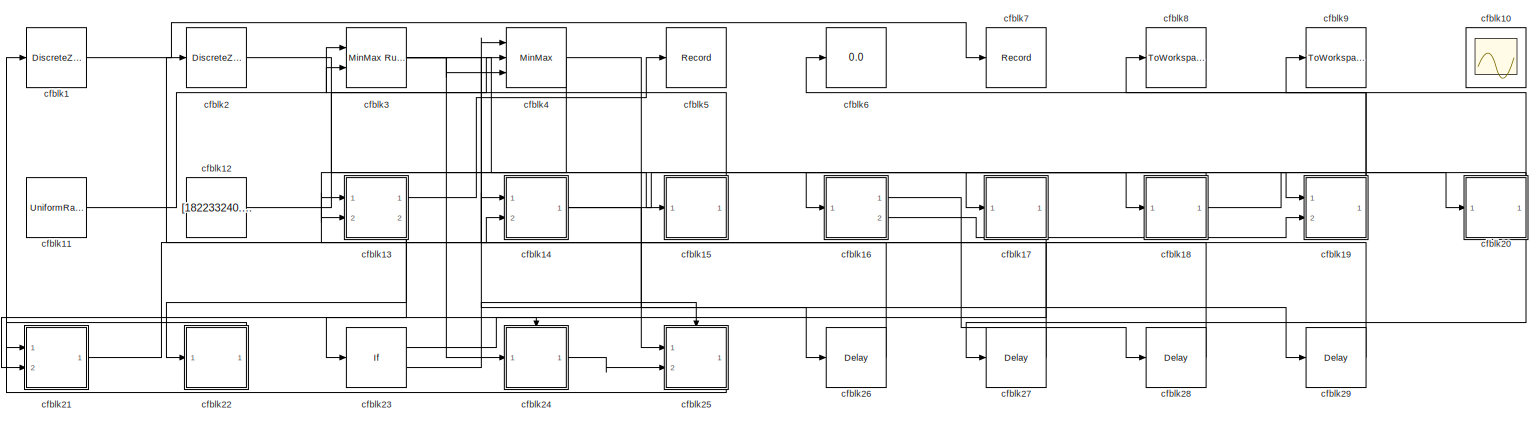
[diagram: root canvas - part 1/1, most of the canvas]
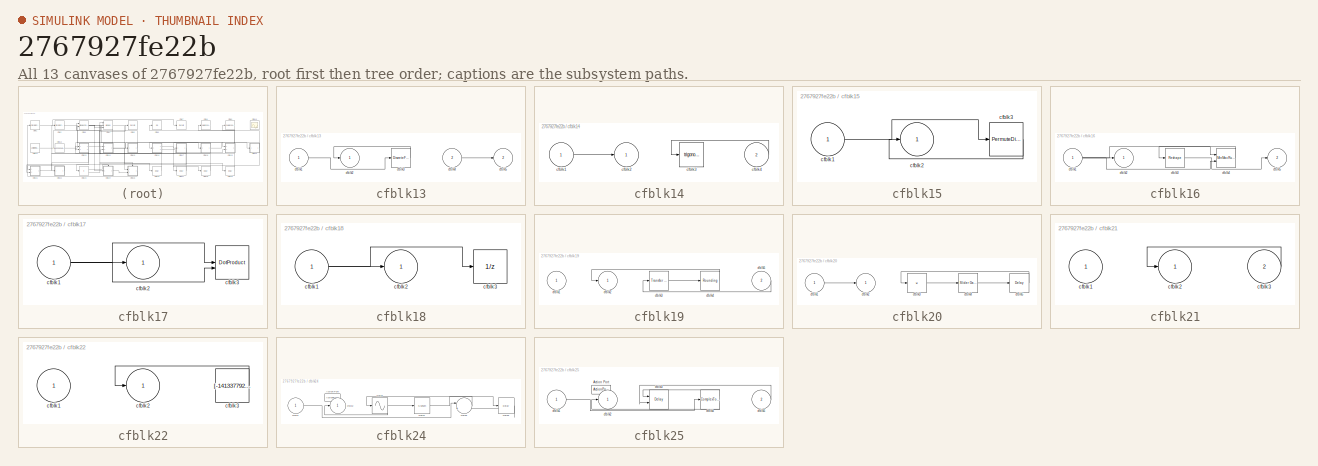
[diagram: thumbnail index - all 13 canvases of the model, root first then tree order]
MODEL slx_2767927fe22b
KIND model
CONFIG AbsTol = auto
CONFIG EnableMultiTasking = off
CONFIG FixedStep = auto
CONFIG MaxStep = auto
CONFIG MinStep = auto
CONFIG RelTol = 1e-3
CONFIG SampleTimeConstraint = Unconstrained
CONFIG SolverName = VariableStepAuto
CONFIG StartTime = 0.0
CONFIG StopTime = 10.0
BLOCK [DiscreteZeroPole] cfblk1
  Gain = 1
  Poles = [0 0.5]
BLOCK [Scope] cfblk10
  Floating = on
  NumInputPorts = 1
  Ports = []
BLOCK [UniformRandomNumber] cfblk11
  Maximum = [659722112.246496]
  Minimum = [-6625192953.180672]
  SampleTime = 0.1
  Seed = [92829086.000000]
BLOCK [Constant] cfblk12
  SampleTime = 1
  Value = [182233240.857041]
BLOCK [SubSystem] cfblk13
  Ports = [2, 2]
  RequestExecContextInheritance = off
BLOCK [Inport] cfblk13/cfblk1
BLOCK [Outport] cfblk13/cfblk2
BLOCK [DiscreteFilter] cfblk13/cfblk3
  InputPortMap = u0
  Ports = [1, 1]
  SampleTime = 1
BLOCK [Inport] cfblk13/cfblk4
  Port = 2
BLOCK [Outport] cfblk13/cfblk5
  Port = 2
BLOCK [SubSystem] cfblk14
  Ports = [2, 1]
  RequestExecContextInheritance = off
BLOCK [Inport] cfblk14/cfblk1
BLOCK [Outport] cfblk14/cfblk2
BLOCK [Trigonometry] cfblk14/cfblk3
  Ports = [1, 1]
BLOCK [Inport] cfblk14/cfblk4
  Port = 2
BLOCK [SubSystem] cfblk15
  Ports = [1, 1]
  RequestExecContextInheritance = off
BLOCK [Inport] cfblk15/cfblk1
BLOCK [Outport] cfblk15/cfblk2
BLOCK [PermuteDimensions] cfblk15/cfblk3
BLOCK [SubSystem] cfblk16
  Ports = [1, 2]
  RequestExecContextInheritance = off
BLOCK [Inport] cfblk16/cfblk1
BLOCK [Outport] cfblk16/cfblk2
BLOCK [Reshape] cfblk16/cfblk3
  Ports = [1, 1]
BLOCK [Reference] cfblk16/cfblk4  REF=simulink/Math
Operations/MinMax
Running
Resettable
  Ports = [2, 1]
  SourceBlock = simulink/Math\nOperations/MinMax\nRunning\nResettable
  SourceProductBaseCode = SL
  SourceType = MinMax Running Resettable
BLOCK [Outport] cfblk16/cfblk5
  Port = 2
BLOCK [SubSystem] cfblk17
  Ports = [1, 1]
  RequestExecContextInheritance = off
BLOCK [Inport] cfblk17/cfblk1
BLOCK [Outport] cfblk17/cfblk2
BLOCK [DotProduct] cfblk17/cfblk3
  OutDataTypeStr = Inherit: Inherit via internal rule
BLOCK [SubSystem] cfblk18
  Ports = [1, 1]
  RequestExecContextInheritance = off
BLOCK [Inport] cfblk18/cfblk1
BLOCK [Outport] cfblk18/cfblk2
BLOCK [UnitDelay] cfblk18/cfblk3
  HasFrameUpgradeWarning = on
BLOCK [SubSystem] cfblk19
  Ports = [2, 1]
  RequestExecContextInheritance = off
BLOCK [Inport] cfblk19/cfblk1
BLOCK [Outport] cfblk19/cfblk2
BLOCK [Reference] cfblk19/cfblk3  REF=simulink/Discrete/Transfer Fcn
Lead or Lag
  Ports = [1, 1]
  SourceBlock = simulink/Discrete/Transfer Fcn\nLead or Lag
  SourceProductBaseCode = SL
  SourceType = Lead or Lag Compensator
BLOCK [Rounding] cfblk19/cfblk4
BLOCK [Inport] cfblk19/cfblk5
  Port = 2
BLOCK [DiscreteZeroPole] cfblk2
  Gain = 1
  Poles = [0 0.5]
BLOCK [SubSystem] cfblk20
  Ports = [1, 1]
  RequestExecContextInheritance = off
BLOCK [Inport] cfblk20/cfblk1
BLOCK [Outport] cfblk20/cfblk2
BLOCK [Product] cfblk20/cfblk3
  Inputs = *
  Ports = [1, 1]
BLOCK [Reference] cfblk20/cfblk4  REF=simulink/Math
Operations/Slider
Gain
  Ports = [1, 1]
  SourceBlock = simulink/Math\nOperations/Slider\nGain
  SourceProductBaseCode = SL
  SourceType = Slider Gain
BLOCK [Delay] cfblk20/cfblk5
  InputPortMap = u0
  Ports = [1, 1]
  SampleTime = 1
BLOCK [SubSystem] cfblk21
  Ports = [2, 1]
  RequestExecContextInheritance = off
BLOCK [Inport] cfblk21/cfblk1
BLOCK [Outport] cfblk21/cfblk2
BLOCK [Inport] cfblk21/cfblk3
  Port = 2
BLOCK [SubSystem] cfblk22
  Ports = [1, 1]
  RequestExecContextInheritance = off
BLOCK [Inport] cfblk22/cfblk1
BLOCK [Outport] cfblk22/cfblk2
BLOCK [Constant] cfblk22/cfblk3
  SampleTime = 1
  Value = [-141337792.155833]
BLOCK [If] cfblk23
  IfExpression = u1 >= 0
  Ports = [1, 2]
  SampleTime = 1
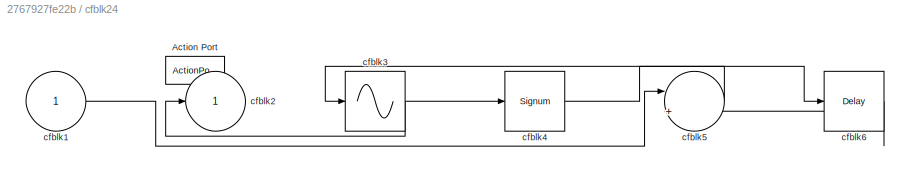
BLOCK [SubSystem] cfblk24
  Ports = [1, 1, 0, 0, 0, 0, 0, 1]
  RequestExecContextInheritance = off
  TreatAsAtomicUnit = on
BLOCK [ActionPort] cfblk24/Action Port
  ActionPortLabel = if(u1 >= 0)
BLOCK [Inport] cfblk24/cfblk1
BLOCK [Outport] cfblk24/cfblk2
BLOCK [Sin] cfblk24/cfblk3
  Ports = [1, 1]
  SampleTime = 0
  TimeSource = Use external signal
BLOCK [Signum] cfblk24/cfblk4
BLOCK [Sum] cfblk24/cfblk5
  Inputs = |++
  Ports = [2, 1]
BLOCK [Delay] cfblk24/cfblk6
  InputPortMap = u0
  Ports = [1, 1]
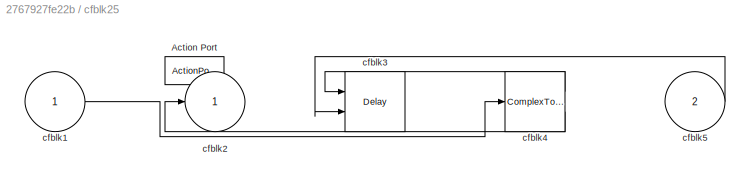
BLOCK [SubSystem] cfblk25
  Ports = [2, 1, 0, 0, 0, 0, 0, 1]
  RequestExecContextInheritance = off
  TreatAsAtomicUnit = on
BLOCK [ActionPort] cfblk25/Action Port
  ActionPortLabel = else
BLOCK [Inport] cfblk25/cfblk1
BLOCK [Outport] cfblk25/cfblk2
BLOCK [Delay] cfblk25/cfblk3
  InputPortMap = u0,e6
  Ports = [2, 1]
  ShowEnablePort = on
BLOCK [ComplexToRealImag] cfblk25/cfblk4
  Ports = [1, 2]
BLOCK [Inport] cfblk25/cfblk5
  Port = 2
BLOCK [Delay] cfblk26
  InputPortMap = u0
  Ports = [1, 1]
  SampleTime = 1
BLOCK [Delay] cfblk27
  InputPortMap = u0
  Ports = [1, 1]
  SampleTime = 1
BLOCK [Delay] cfblk28
  InputPortMap = u0
  Ports = [1, 1]
  SampleTime = 1
BLOCK [Delay] cfblk29
  InputPortMap = u0
  Ports = [1, 1]
  SampleTime = 1
BLOCK [Reference] cfblk3  REF=simulink/Math
Operations/MinMax
Running
Resettable
  Ports = [2, 1]
  SourceBlock = simulink/Math\nOperations/MinMax\nRunning\nResettable
  SourceProductBaseCode = SL
  SourceType = MinMax Running Resettable
BLOCK [MinMax] cfblk4
  Function = max
  Inputs = 3
  Ports = [3, 1]
BLOCK [Record] cfblk5
  FileSettingsInternal = {"entries":[{"content":{"excelSettings":{"content":{},"type":"Streamout.ExcelSettings"}},"type":"Streamout.FileSettingStorage","uuid":"0f116b82-28e0-41c1-9d28-ccf6914d8969"}],"packageUris":["http://schema.mathworks.com/mf0/streamout_blocks/R2020a"],"version":"1.0"}
  Ports = [1]
  SignalsInternal = {"entries":[{"content":{"signals":[{"content":{"blockPath":["sampleModel133/cfblk5"],"channel":[],"dimensions":[1],"domain":"sampleModel133/cfblk5","lineColor":"#ff6929","plots":[1],"port":1,"sid":[""],"signalID":4650,"signalName":"cfblk13:1"},"type":"RecordBlkView.Signal","uuid":"5c9d4d2d-3be4-4ef9-9a8e-3bb03e591d5f"}]},"type":"RecordBlkView.InputSignals","uuid":"da5b8e4e-e8d3-4078-99a8-ef419a7cb...<+97ch>
  VisualizationBindings = {"sparklinesplugin":{"info":[{"bindingParametersList":[],"subplotID":1}]}}
BLOCK [Display] cfblk6
  Decimation = 1
  Ports = [1]
BLOCK [Record] cfblk7
  FileSettingsInternal = {"entries":[{"content":{"excelSettings":{"content":{},"type":"Streamout.ExcelSettings"}},"type":"Streamout.FileSettingStorage","uuid":"4582ff4c-a753-4cc0-a705-87be088536e4"}],"packageUris":["http://schema.mathworks.com/mf0/streamout_blocks/R2020a"],"version":"1.0"}
  Ports = [1]
  SignalsInternal = {"entries":[{"content":{"signals":[{"content":{"blockPath":["sampleModel133/cfblk7"],"channel":[],"dimensions":[1],"domain":"sampleModel133/cfblk7","lineColor":"#b746ff","plots":[1],"port":1,"sid":[""],"signalID":4654,"signalName":"cfblk1"},"type":"RecordBlkView.Signal","uuid":"e968a7e7-b7c7-42d6-b284-279b8472955c"}]},"type":"RecordBlkView.InputSignals","uuid":"fe7274b2-3fec-4592-8935-8bf87c9eb367...<+94ch>
  VisualizationBindings = {"sparklinesplugin":{"info":[{"bindingParametersList":[],"subplotID":1}]}}
BLOCK [ToWorkspace] cfblk8
  FixptAsFi = on
  MaxDataPoints = inf
  Ports = [1]
  SampleTime = -1
  SaveFormat = Timeseries
  VariableName = kcyjflc
BLOCK [ToWorkspace] cfblk9
  FixptAsFi = on
  MaxDataPoints = inf
  Ports = [1]
  SampleTime = -1
  SaveFormat = Timeseries
  VariableName = iwfbkai
LINE cfblk11:1 -> cfblk3:1
LINE cfblk12:1 -> cfblk4:2
LINE cfblk13/cfblk1:1 -> cfblk13/cfblk3:1
LINE cfblk13/cfblk3:1 -> cfblk13/cfblk2:1
LINE cfblk13/cfblk4:1 -> cfblk13/cfblk5:1
LINE cfblk13:1 -> cfblk5:1
NET cfblk13:2 -> cfblk21:2, cfblk22:1
LINE cfblk14/cfblk1:1 -> cfblk14/cfblk2:1
LINE cfblk14/cfblk4:1 -> cfblk14/cfblk3:1
NET cfblk14:1 -> cfblk18:1, cfblk29:1
LINE cfblk15/cfblk1:1 -> cfblk15/cfblk3:1
LINE cfblk15/cfblk3:1 -> cfblk15/cfblk2:1
LINE cfblk15:1 -> cfblk3:2
NET cfblk16/cfblk1:1 -> cfblk16/cfblk2:1, cfblk16/cfblk4:1, cfblk16/cfblk4:2
LINE cfblk16/cfblk3:1 -> cfblk16/cfblk5:1
LINE cfblk16/cfblk4:1 -> cfblk16/cfblk3:1
LINE cfblk16:1 -> cfblk28:1
LINE cfblk16:2 -> cfblk19:2
NET cfblk17/cfblk1:1 -> cfblk17/cfblk2:1, cfblk17/cfblk3:1, cfblk17/cfblk3:2
LINE cfblk17:1 -> cfblk23:1
NET cfblk18/cfblk1:1 -> cfblk18/cfblk2:1, cfblk18/cfblk3:1
NET cfblk18:1 -> cfblk17:1, cfblk20:1
LINE cfblk19/cfblk3:1 -> cfblk19/cfblk4:1
LINE cfblk19/cfblk4:1 -> cfblk19/cfblk2:1
LINE cfblk19/cfblk5:1 -> cfblk19/cfblk3:1
NET cfblk19:1 -> cfblk6:1, cfblk8:1
LINE cfblk1:1 -> cfblk7:1
LINE cfblk20/cfblk1:1 -> cfblk20/cfblk2:1
LINE cfblk20/cfblk3:1 -> cfblk20/cfblk4:1
LINE cfblk20/cfblk4:1 -> cfblk20/cfblk5:1
LINE cfblk20/cfblk5:1 -> cfblk20/cfblk3:1
NET cfblk20:1 -> cfblk16:1, cfblk27:1, cfblk9:1
LINE cfblk21/cfblk3:1 -> cfblk21/cfblk2:1
LINE cfblk21:1 -> cfblk14:2
LINE cfblk22/cfblk3:1 -> cfblk22/cfblk2:1
LINE cfblk22:1 -> cfblk21:1
LINE cfblk23:1 -> cfblk24:ifaction
LINE cfblk23:2 -> cfblk25:ifaction
LINE cfblk24/cfblk1:1 -> cfblk24/cfblk5:1
NET cfblk24/cfblk3:1 -> cfblk24/cfblk2:1, cfblk24/cfblk4:1
LINE cfblk24/cfblk4:1 -> cfblk24/cfblk6:1
LINE cfblk24/cfblk5:1 -> cfblk24/cfblk3:1
LINE cfblk24/cfblk6:1 -> cfblk24/cfblk5:2
LINE cfblk24:1 -> cfblk25:2
LINE cfblk25/cfblk1:1 -> cfblk25/cfblk4:1
LINE cfblk25/cfblk4:1 -> cfblk25/cfblk3:1
LINE cfblk25/cfblk4:2 -> cfblk25/cfblk2:1
LINE cfblk25/cfblk5:1 -> cfblk25/cfblk3:2
LINE cfblk25:1 -> cfblk1:1
LINE cfblk26:1 -> cfblk2:1
LINE cfblk27:1 -> cfblk14:1
LINE cfblk28:1 -> cfblk4:1
LINE cfblk29:1 -> cfblk13:1
LINE cfblk2:1 -> cfblk15:1
NET cfblk3:1 -> cfblk24:1, cfblk25:1, cfblk26:1, cfblk4:3
NET cfblk4:1 -> cfblk13:2, cfblk19:1
note: NET lines group one-source signal fan-out (src -> all destinations, sorted); 1:1 wires keep LINE
